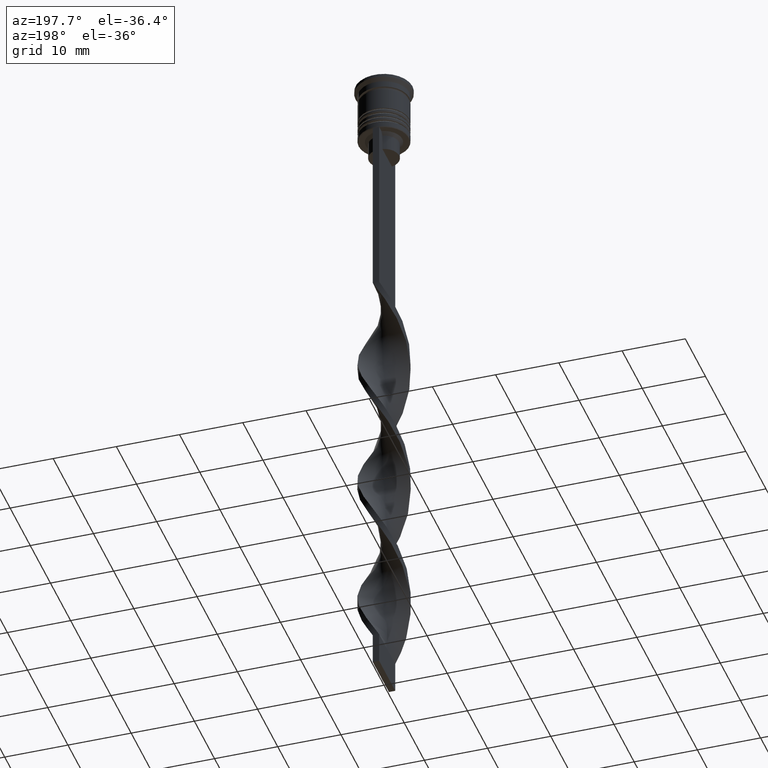
[diagram: clean part render]
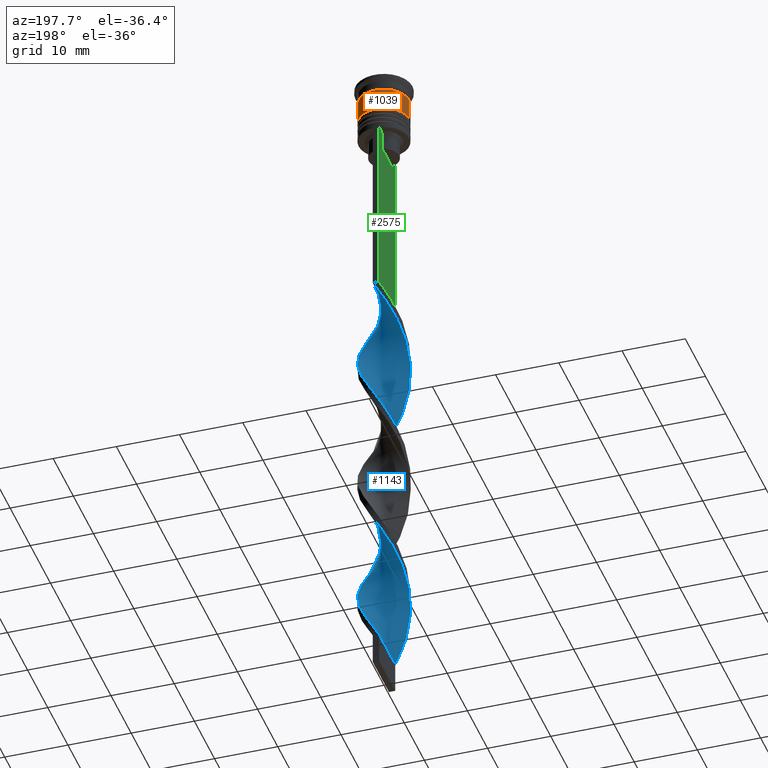
[diagram: same view with three faces highlighted in distinct colors, each labeled with its STEP entity id]
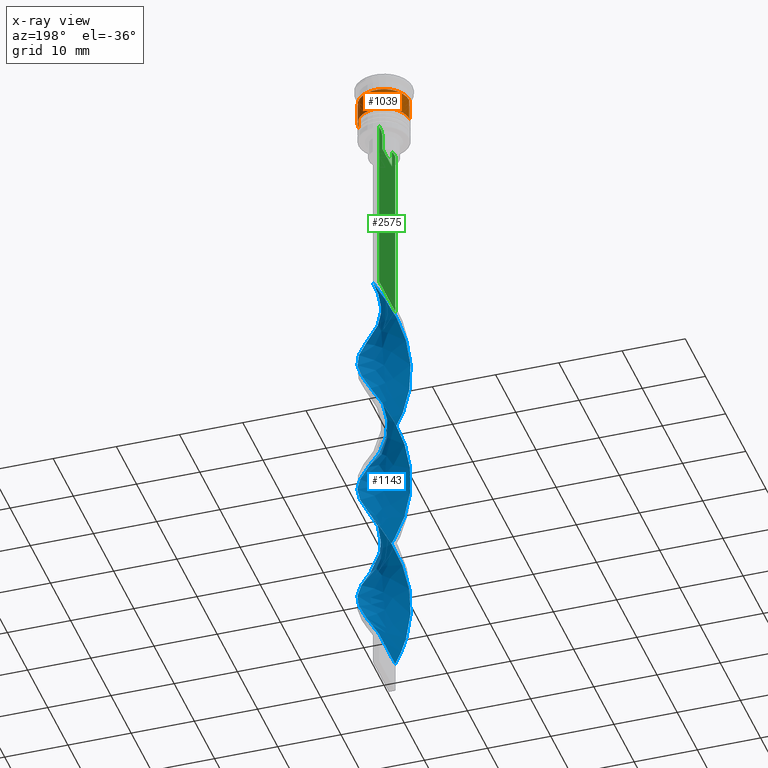
[diagram: x-ray of the same camera — body ghosted, the three highlighted faces saturated]
A machine part, auxiliary view with three faces highlighted in distinct colors.
The next image is the same camera in x-ray (body ghosted, the three faces saturated) — at least one of them is partly hidden behind the body in this view.
Their STEP definitions:

[orange] entity #1039 — the highlighted cylindrical surface (edge-blend (fillet) strip) has radius 4 mm, axis along (-0, -0, 1).
#120 = AXIS2_PLACEMENT_3D ( 'NONE', #3559, #494, #731 ) ;
#142 = CARTESIAN_POINT ( 'NONE',  ( -4.000000000000000888, 4.898587196589413815E-16, -6.000000000000000000 ) ) ;
#262 = ORIENTED_EDGE ( 'NONE', *, *, #599, .F. ) ;
#272 = AXIS2_PLACEMENT_3D ( 'NONE', #2569, #2866, #347 ) ;
#291 = CARTESIAN_POINT ( 'NONE',  ( -4.000000000000000000, 4.898587196589412829E-16, -2.500000000000000000 ) ) ;
#347 = DIRECTION ( 'NONE',  ( 1.000000000000000000, 0.000000000000000000, 0.000000000000000000 ) ) ;
#419 = ORIENTED_EDGE ( 'NONE', *, *, #2699, .T. ) ;
#435 = CARTESIAN_POINT ( 'NONE',  ( 4.000000000000000000, 0.000000000000000000, 0.000000000000000000 ) ) ;
#449 = AXIS2_PLACEMENT_3D ( 'NONE', #1781, #2631, #3441 ) ;
#450 = VERTEX_POINT ( 'NONE', #3061 ) ;
#494 = DIRECTION ( 'NONE',  ( -0.000000000000000000, -0.000000000000000000, 1.000000000000000000 ) ) ;
#599 = EDGE_CURVE ( 'NONE', #450, #2853, #2736, .T. ) ;
#731 = DIRECTION ( 'NONE',  ( 1.000000000000000000, 0.000000000000000000, 0.000000000000000000 ) ) ;
#1016 = EDGE_CURVE ( 'NONE', #450, #2601, #1817, .T. ) ;
#1039 = ADVANCED_FACE ( 'NONE', ( #3157 ), #3461, .T. ) ;
#1484 = CARTESIAN_POINT ( 'NONE',  ( 4.000000000000000000, 0.000000000000000000, -2.500000000000000000 ) ) ;
#1781 = CARTESIAN_POINT ( 'NONE',  ( 0.000000000000000000, 0.000000000000000000, -6.000000000000000000 ) ) ;
#1817 = CIRCLE ( 'NONE', #449, 4.000000000000000888 ) ;
#1858 = ORIENTED_EDGE ( 'NONE', *, *, #3310, .F. ) ;
#1903 = DIRECTION ( 'NONE',  ( -0.000000000000000000, -0.000000000000000000, 1.000000000000000000 ) ) ;
#2076 = ORIENTED_EDGE ( 'NONE', *, *, #1016, .T. ) ;
#2163 = DIRECTION ( 'NONE',  ( -0.000000000000000000, -0.000000000000000000, 1.000000000000000000 ) ) ;
#2343 = VERTEX_POINT ( 'NONE', #291 ) ;
#2569 = CARTESIAN_POINT ( 'NONE',  ( 0.000000000000000000, 0.000000000000000000, 0.000000000000000000 ) ) ;
#2601 = VERTEX_POINT ( 'NONE', #142 ) ;
#2631 = DIRECTION ( 'NONE',  ( -0.000000000000000000, -0.000000000000000000, 1.000000000000000000 ) ) ;
#2699 = EDGE_CURVE ( 'NONE', #2601, #2343, #3013, .T. ) ;
#2736 = LINE ( 'NONE', #435, #3335 ) ;
#2853 = VERTEX_POINT ( 'NONE', #1484 ) ;
#2866 = DIRECTION ( 'NONE',  ( -0.000000000000000000, -0.000000000000000000, 1.000000000000000000 ) ) ;
#3013 = LINE ( 'NONE', #3304, #3638 ) ;
#3061 = CARTESIAN_POINT ( 'NONE',  ( 4.000000000000000888, 0.000000000000000000, -6.000000000000000000 ) ) ;
#3157 = FACE_OUTER_BOUND ( 'NONE', #3364, .T. ) ;
#3294 = CIRCLE ( 'NONE', #120, 4.000000000000000000 ) ;
#3304 = CARTESIAN_POINT ( 'NONE',  ( -4.000000000000000000, 4.898587196589412829E-16, 0.000000000000000000 ) ) ;
#3310 = EDGE_CURVE ( 'NONE', #2853, #2343, #3294, .T. ) ;
#3335 = VECTOR ( 'NONE', #2163, 1000.000000000000000 ) ;
#3364 = EDGE_LOOP ( 'NONE', ( #2076, #419, #1858, #262 ) ) ;
#3441 = DIRECTION ( 'NONE',  ( 1.000000000000000000, 0.000000000000000000, 0.000000000000000000 ) ) ;
#3461 = CYLINDRICAL_SURFACE ( 'NONE', #272, 4.000000000000000000 ) ;
#3559 = CARTESIAN_POINT ( 'NONE',  ( 0.000000000000000000, 0.000000000000000000, -2.500000000000000000 ) ) ;
#3638 = VECTOR ( 'NONE', #1903, 1000.000000000000000 ) ;

[blue] entity #1143 — the highlighted face is a freeform B-spline surface patch.
#2 = CARTESIAN_POINT ( 'NONE',  ( 0.01431206711095556715, -4.060710991611130360, -81.65384615384616041 ) ) ;
#4 = CARTESIAN_POINT ( 'NONE',  ( -0.9856879328890412184, 3.939289008388869640, -61.34615384615383249 ) ) ;
#19 = CARTESIAN_POINT ( 'NONE',  ( -0.4717917484372087800, -4.003425101847986056, -80.80769230769230660 ) ) ;
#22 = CARTESIAN_POINT ( 'NONE',  ( 1.899779198837471705, -3.588929866731989549, -85.03846153846153300 ) ) ;
#39 = CARTESIAN_POINT ( 'NONE',  ( 2.682036731043690558, 3.048976478424999303, -98.57692307692310862 ) ) ;
#45 = CARTESIAN_POINT ( 'NONE',  ( -3.007903090209048891, -2.683750919871450868, -75.73076923076924061 ) ) ;
#75 = CARTESIAN_POINT ( 'NONE',  ( -2.682036731043690114, 3.048976478425000636, -88.42307692307691980 ) ) ;
#89 = CARTESIAN_POINT ( 'NONE',  ( 3.562762527220391107, -1.885927669512850846, -68.96153846153846700 ) ) ;
#93 = CARTESIAN_POINT ( 'NONE',  ( 4.032828965577023972, 0.4752569063773701696, -73.19230769230769340 ) ) ;
#118 = CARTESIAN_POINT ( 'NONE',  ( -3.026746007048731979, -2.662481663564005618, -99.42307692307691980 ) ) ;
#147 = CARTESIAN_POINT ( 'NONE',  ( 0.01431206711095789688, 4.060710991611130360, -39.34615384615384670 ) ) ;
#163 = CARTESIAN_POINT ( 'NONE',  ( -1.442733565863258516, -3.764109437560428262, -102.8076923076923208 ) ) ;
#182 = CARTESIAN_POINT ( 'NONE',  ( 1.416164675348469792, 3.774185688634723146, -57.11538461538461320 ) ) ;
#196 = CARTESIAN_POINT ( 'NONE',  ( 3.917367414262927561, 0.9509114268274349024, -74.03846153846153300 ) ) ;
#210 = CARTESIAN_POINT ( 'NONE',  ( -3.801905862948830261, -1.426565947277498081, -96.88461538461538680 ) ) ;
#221 = CARTESIAN_POINT ( 'NONE',  ( -3.917367414262927561, -0.9509114268274344584, -52.03846153846154010 ) ) ;
#230 = CARTESIAN_POINT ( 'NONE',  ( -2.301620701001679148, -3.309462516590954806, -101.1153846153846132 ) ) ;
#247 = CARTESIAN_POINT ( 'NONE',  ( 2.301620701001678704, -3.309462516590955250, -85.88461538461538680 ) ) ;
#260 = CARTESIAN_POINT ( 'NONE',  ( -2.682036731043692335, -3.048976478424997527, -76.57692307692306599 ) ) ;
#264 = CARTESIAN_POINT ( 'NONE',  ( -3.910567156264555422, -0.9785011580703162348, -72.34615384615383959 ) ) ;
#281 = CARTESIAN_POINT ( 'NONE',  ( -1.442733565863255851, 3.764109437560429594, -62.19230769230769340 ) ) ;
#284 = CARTESIAN_POINT ( 'NONE',  ( 3.333769449374405447, 2.318525361317902878, -52.88461538461538680 ) ) ;
#289 = CARTESIAN_POINT ( 'NONE',  ( -3.026746007048731979, -2.662481663564005618, -55.42307692307691980 ) ) ;
#295 = CARTESIAN_POINT ( 'NONE',  ( -3.791755605066378987, -1.453329977707795484, -73.19230769230770761 ) ) ;
#298 = CARTESIAN_POINT ( 'NONE',  ( 0.5000000000000000000, -4.000000000000000000, -82.50000000000000000 ) ) ;
#303 = CARTESIAN_POINT ( 'NONE',  ( -3.333769449374404559, 2.318525361317903322, -90.11538461538462741 ) ) ;
#312 = CARTESIAN_POINT ( 'NONE',  ( 3.562762527220391551, 1.885927669512849070, -96.03846153846154721 ) ) ;
#315 = CARTESIAN_POINT ( 'NONE',  ( -1.442733565863255851, 3.764109437560429594, -62.19230769230769340 ) ) ;
#321 = CARTESIAN_POINT ( 'NONE',  ( -3.350029810931577590, -2.294968160678091174, -98.57692307692310862 ) ) ;
#345 = CARTESIAN_POINT ( 'NONE',  ( 4.031103836519877248, -0.01420771602773772055, -72.34615384615383959 ) ) ;
#357 = CARTESIAN_POINT ( 'NONE',  ( 2.278235258877631342, 3.325604321804801256, -99.42307692307691980 ) ) ;
#360 = CARTESIAN_POINT ( 'NONE',  ( 2.278235258877629565, -3.325604321804802588, -65.57692307692308020 ) ) ;
#364 = CARTESIAN_POINT ( 'NONE',  ( -3.801905862948830261, -1.426565947277498081, -96.88461538461538680 ) ) ;
#371 = B_SPLINE_CURVE_WITH_KNOTS ( 'NONE', 3,
 ( #2108, #2599, #1207, #2341 ),
 .UNSPECIFIED., .F., .F.,
 ( 4, 4 ),
 ( 0.000000000000000000, 1.000000000000000000 ),
 .UNSPECIFIED. ) ;
#374 = CARTESIAN_POINT ( 'NONE',  ( 3.917367414262926673, -0.9509114268274357906, -90.96153846153845279 ) ) ;
#416 = CARTESIAN_POINT ( 'NONE',  ( -3.026746007048731979, -2.662481663564005618, -55.42307692307691980 ) ) ;
#431 = CARTESIAN_POINT ( 'NONE',  ( -0.9856879328890439940, -3.939289008388870084, -59.65384615384615330 ) ) ;
#448 = CARTESIAN_POINT ( 'NONE',  ( 3.910567156264554534, 0.9785011580703186773, -50.34615384615384670 ) ) ;
#468 = CARTESIAN_POINT ( 'NONE',  ( 2.703462203165886812, 3.029995166449921840, -78.26923076923075939 ) ) ;
#480 = CARTESIAN_POINT ( 'NONE',  ( -3.333769449374405003, 2.318525361317902878, -90.11538461538462741 ) ) ;
#483 = CARTESIAN_POINT ( 'NONE',  ( -0.4999999999999994449, 4.000000000000000000, -104.5000000000000142 ) ) ;
#491 = CARTESIAN_POINT ( 'NONE',  ( 3.801905862948830706, -1.426565947277498525, -46.11538461538462741 ) ) ;
#514 = CARTESIAN_POINT ( 'NONE',  ( 0.5000000000000000000, 4.000000000000000000, -82.50000000000000000 ) ) ;
#523 = CARTESIAN_POINT ( 'NONE',  ( -1.874433786711570349, 3.602232165184604096, -42.73076923076923350 ) ) ;
#533 = CARTESIAN_POINT ( 'NONE',  ( 3.791755605066377655, 1.453329977707796816, -51.19230769230768630 ) ) ;
#538 = CARTESIAN_POINT ( 'NONE',  ( 2.278235258877629565, -3.325604321804802588, -65.57692307692308020 ) ) ;
#546 = CARTESIAN_POINT ( 'NONE',  ( 3.026746007048731091, -2.662481663564006951, -87.57692307692308020 ) ) ;
#547 = VERTEX_POINT ( 'NONE', #483 ) ;
#549 = CARTESIAN_POINT ( 'NONE',  ( -0.9578955639853693471, -3.946139212084843972, -79.96153846153846700 ) ) ;
#555 =( BOUNDED_CURVE ( )  B_SPLINE_CURVE ( 2, ( #2032, #3076, #3387, #1972, #1092, #2876, #1376, #1692, #573, #1714, #2546, #818, #3642, #609, #2013, #533, #2505, #284, #2232, #3352, #892, #2855, #851, #1415, #3092, #3369, #1433, #4, #315, #3621, #1131, #1452, #2819, #1954, #2580, #2250, #1147, #1676, #1393, #3148, #264, #2801, #2527, #1992, #45, #1113, #3129, #1729, #832, #549, #3111, #2837, #298, #2562, #874, #22, #2285, #3407, #591, #1173, #2309, #3429, #374, #940, #2327, #3493, #2383, #959, #2961, #2078, #3524, #1514, #357, #3191, #1845, #2939, #3510, #1477, #980 ),
 .UNSPECIFIED., .F., .T. ) 
 B_SPLINE_CURVE_WITH_KNOTS ( ( 3, 2, 2, 2, 2, 2, 2, 2, 2, 2, 2, 2, 2, 2, 2, 2, 2, 2, 2, 2, 2, 2, 2, 2, 2, 2, 2, 2, 2, 2, 2, 2, 2, 2, 2, 2, 2, 2, 2, 3 ),
 ( 0.000000000000000000, 0.01923076923076923184, 0.03846153846153846367, 0.05769230769230768857, 0.07692307692307692735, 0.09615384615384615918, 0.1153846153846153771, 0.1346153846153846090, 0.1538461538461538547, 0.1730769230769230449, 0.1923076923076923184, 0.2115384615384615363, 0.2307692307692307543, 0.2500000000000000000, 0.2692307692307692180, 0.2884615384615384359, 0.3076923076923077094, 0.3269230769230769273, 0.3461538461538460898, 0.3653846153846153633, 0.3846153846153846367, 0.4038461538461539102, 0.4230769230769230727, 0.4423076923076922906, 0.4615384615384615086, 0.4807692307692307820, 0.5000000000000000000, 0.5192307692307692735, 0.5384615384615384359, 0.5576923076923077094, 0.5769230769230768718, 0.5961538461538461453, 0.6153846153846154188, 0.6346153846153845812, 0.6538461538461538547, 0.6730769230769230171, 0.6923076923076921796, 0.7115384615384615641, 0.7307692307692307265, 0.7500000000000000000 ),
 .UNSPECIFIED. ) 
 CURVE ( )  GEOMETRIC_REPRESENTATION_ITEM ( )  RATIONAL_B_SPLINE_CURVE ( ( 1.000000000000000000, 0.9927088740980539727, 1.000000000000000000, 0.9927088740980539727, 1.000000000000000000, 0.9927088740980539727, 1.000000000000000000, 0.9927088740980539727, 1.000000000000000000, 0.9927088740980539727, 1.000000000000000000, 0.9927088740980539727, 1.000000000000000000, 0.9927088740980539727, 1.000000000000000000, 0.9927088740980539727, 1.000000000000000000, 0.9927088740980539727, 1.000000000000000000, 0.9927088740980539727, 1.000000000000000000, 0.9927088740980539727, 1.000000000000000000, 0.9927088740980539727, 1.000000000000000000, 0.9927088740980539727, 1.000000000000000000, 0.9927088740980539727, 1.000000000000000000, 0.9927088740980539727, 1.000000000000000000, 0.9927088740980539727, 1.000000000000000000, 0.9927088740980539727, 1.000000000000000000, 0.9927088740980539727, 1.000000000000000000, 0.9927088740980539727, 1.000000000000000000, 0.9927088740980539727, 1.000000000000000000, 0.9927088740980539727, 1.000000000000000000, 0.9927088740980539727, 1.000000000000000000, 0.9927088740980539727, 1.000000000000000000, 0.9927088740980539727, 1.000000000000000000, 0.9927088740980539727, 1.000000000000000000, 0.9927088740980539727, 1.000000000000000000, 0.9927088740980539727, 1.000000000000000000, 0.9927088740980539727, 1.000000000000000000, 0.9927088740980539727, 1.000000000000000000, 0.9927088740980539727, 1.000000000000000000, 0.9927088740980539727, 1.000000000000000000, 0.9927088740980539727, 1.000000000000000000, 0.9927088740980539727, 1.000000000000000000, 0.9927088740980539727, 1.000000000000000000, 0.9927088740980539727, 1.000000000000000000, 0.9927088740980539727, 1.000000000000000000, 0.9927088740980539727, 1.000000000000000000, 0.9927088740980539727, 1.000000000000000000, 0.9927088740980539727, 1.000000000000000000 ) ) 
 REPRESENTATION_ITEM ( '' )  );
#558 = CARTESIAN_POINT ( 'NONE',  ( -3.910567156264554534, 0.9785011580703200096, -48.65384615384615330 ) ) ;
#570 = CARTESIAN_POINT ( 'NONE',  ( -3.575967836940203703, 1.860767053977795404, -67.26923076923077360 ) ) ;
#573 = CARTESIAN_POINT ( 'NONE',  ( 3.575967836940203703, -1.860767053977795404, -45.26923076923076650 ) ) ;
#587 = CARTESIAN_POINT ( 'NONE',  ( 0.9856879328890421066, -3.939289008388870084, -83.34615384615386802 ) ) ;
#591 = CARTESIAN_POINT ( 'NONE',  ( 3.026746007048731091, -2.662481663564006951, -87.57692307692308020 ) ) ;
#605 = CARTESIAN_POINT ( 'NONE',  ( 3.333769449374405447, 2.318525361317902433, -96.88461538461538680 ) ) ;
#609 = CARTESIAN_POINT ( 'NONE',  ( 4.029378707462731413, 0.5036723384328412045, -49.50000000000000000 ) ) ;
#617 = CARTESIAN_POINT ( 'NONE',  ( 3.026746007048732423, 2.662481663564005174, -77.42307692307693401 ) ) ;
#643 = CARTESIAN_POINT ( 'NONE',  ( -1.416164675348469126, 3.774185688634723590, -85.88461538461538680 ) ) ;
#661 = CARTESIAN_POINT ( 'NONE',  ( 4.031103836519877248, -0.01420771602773772055, -72.34615384615383959 ) ) ;
#665 = CARTESIAN_POINT ( 'NONE',  ( -4.029378707462731413, 0.5036723384328416486, -93.50000000000000000 ) ) ;
#677 = CARTESIAN_POINT ( 'NONE',  ( -0.9578955639853675708, 3.946139212084844416, -41.03846153846154010 ) ) ;
#710 = EDGE_LOOP ( 'NONE', ( #2075, #2208, #1865, #1643 ) ) ;
#729 = CARTESIAN_POINT ( 'NONE',  ( -2.278235258877630010, 3.325604321804802588, -87.57692307692308020 ) ) ;
#744 = CARTESIAN_POINT ( 'NONE',  ( -2.682036731043689670, 3.048976478425000636, -88.42307692307693401 ) ) ;
#760 = CARTESIAN_POINT ( 'NONE',  ( -2.703462203165886368, -3.029995166449921840, -100.2692307692307878 ) ) ;
#773 = CARTESIAN_POINT ( 'NONE',  ( 3.007903090209048003, 2.683750919871450868, -53.73076923076923350 ) ) ;
#782 = CARTESIAN_POINT ( 'NONE',  ( -3.801905862948830261, -1.426565947277498081, -52.88461538461538680 ) ) ;
#790 = CARTESIAN_POINT ( 'NONE',  ( 0.9856879328890444381, 3.939289008388870084, -81.65384615384616041 ) ) ;
#805 = CARTESIAN_POINT ( 'NONE',  ( -4.031103836519878136, 0.01420771602773549663, -50.34615384615384670 ) ) ;
#818 = CARTESIAN_POINT ( 'NONE',  ( 4.032828965577023972, -0.4752569063773721680, -47.80769230769230660 ) ) ;
#829 = CARTESIAN_POINT ( 'NONE',  ( -3.350029810931575813, 2.294968160678093394, -66.42307692307694822 ) ) ;
#832 = CARTESIAN_POINT ( 'NONE',  ( -1.416164675348472235, -3.774185688634722702, -79.11538461538461320 ) ) ;
#847 = CARTESIAN_POINT ( 'NONE',  ( -1.874433786711571459, -3.602232165184603652, -78.26923076923075939 ) ) ;
#851 = CARTESIAN_POINT ( 'NONE',  ( 1.416164675348469792, 3.774185688634723146, -57.11538461538461320 ) ) ;
#869 = CARTESIAN_POINT ( 'NONE',  ( -2.703462203165885924, 3.029995166449922728, -64.73076923076921219 ) ) ;
#874 = CARTESIAN_POINT ( 'NONE',  ( 1.442733565863256961, -3.764109437560429150, -84.19230769230769340 ) ) ;
#882 = CARTESIAN_POINT ( 'NONE',  ( 0.5000000000000000000, 4.000000000000000000, -38.50000000000000000 ) ) ;
#889 = CARTESIAN_POINT ( 'NONE',  ( 4.032828965577023972, -0.4752569063773721680, -91.80769230769230660 ) ) ;
#892 = CARTESIAN_POINT ( 'NONE',  ( 2.278235258877631342, 3.325604321804801256, -55.42307692307691980 ) ) ;
#901 = EDGE_CURVE ( 'NONE', #1787, #2049, #1862, .T. ) ;
#902 = CARTESIAN_POINT ( 'NONE',  ( -0.9578955639853675708, 3.946139212084843972, -85.03846153846153300 ) ) ;
#917 = CARTESIAN_POINT ( 'NONE',  ( -3.350029810931577590, -2.294968160678091618, -54.57692307692308731 ) ) ;
#940 = CARTESIAN_POINT ( 'NONE',  ( 4.032828965577023972, -0.4752569063773721680, -91.80769230769230660 ) ) ;
#942 = CARTESIAN_POINT ( 'NONE',  ( 3.910567156264554534, -0.9785011580703212308, -70.65384615384614619 ) ) ;
#947 = CARTESIAN_POINT ( 'NONE',  ( 0.01431206711095789862, 4.060710991611130360, -83.34615384615386802 ) ) ;
#959 = CARTESIAN_POINT ( 'NONE',  ( 3.791755605066377655, 1.453329977707796816, -95.19230769230769340 ) ) ;
#969 = CARTESIAN_POINT ( 'NONE',  ( -3.575967836940204148, -1.860767053977794516, -97.73076923076922640 ) ) ;
#980 = CARTESIAN_POINT ( 'NONE',  ( -0.4999999999999994449, 4.000000000000000000, -104.5000000000000142 ) ) ;
#1014 = CARTESIAN_POINT ( 'NONE',  ( -1.416164675348469126, 3.774185688634723590, -85.88461538461538680 ) ) ;
#1029 = CARTESIAN_POINT ( 'NONE',  ( -0.5000000000000005551, -4.000000000000000000, -104.5000000000000142 ) ) ;
#1044 = CARTESIAN_POINT ( 'NONE',  ( 3.801905862948831150, 1.426565947277496083, -74.88461538461538680 ) ) ;
#1061 = CARTESIAN_POINT ( 'NONE',  ( 1.442733565863260736, 3.764109437560427818, -80.80769230769230660 ) ) ;
#1070 = CARTESIAN_POINT ( 'NONE',  ( -2.278235258877630010, 3.325604321804802588, -43.57692307692307310 ) ) ;
#1075 = CARTESIAN_POINT ( 'NONE',  ( -0.4717917484372050052, 4.003425101847986944, -84.19230769230769340 ) ) ;
#1084 = CARTESIAN_POINT ( 'NONE',  ( -0.5000000000000005551, -4.000000000000000000, -60.50000000000000000 ) ) ;
#1092 = CARTESIAN_POINT ( 'NONE',  ( 2.301620701001678704, -3.309462516590955250, -41.88461538461537970 ) ) ;
#1103 = CARTESIAN_POINT ( 'NONE',  ( -3.007903090209047559, 2.683750919871451757, -45.26923076923076650 ) ) ;
#1113 = CARTESIAN_POINT ( 'NONE',  ( -2.682036731043692779, -3.048976478424997527, -76.57692307692306599 ) ) ;
#1120 = CARTESIAN_POINT ( 'NONE',  ( 3.007903090209047559, -2.683750919871451757, -67.26923076923077360 ) ) ;
#1127 = CARTESIAN_POINT ( 'NONE',  ( 4.031103836519878136, 0.01420771602773408804, -92.65384615384616041 ) ) ;
#1131 = CARTESIAN_POINT ( 'NONE',  ( -2.301620701001678704, 3.309462516590955250, -63.88461538461538680 ) ) ;
#1135 = CARTESIAN_POINT ( 'NONE',  ( 3.910567156264554534, -0.9785011580703212308, -70.65384615384614619 ) ) ;
#1143 = ADVANCED_FACE ( 'NONE', ( #3211 ), #2346, .T. ) ;
#1144 = CARTESIAN_POINT ( 'NONE',  ( -3.562762527220391551, -1.885927669512849514, -74.03846153846153300 ) ) ;
#1147 = CARTESIAN_POINT ( 'NONE',  ( -3.917367414262926673, 0.9509114268274362347, -68.96153846153846700 ) ) ;
#1156 = CARTESIAN_POINT ( 'NONE',  ( 3.575967836940204148, 1.860767053977794072, -75.73076923076924061 ) ) ;
#1168 = CARTESIAN_POINT ( 'NONE',  ( 0.4717917484372064485, 4.003425101847986056, -102.8076923076923208 ) ) ;
#1173 = CARTESIAN_POINT ( 'NONE',  ( 3.350029810931576701, -2.294968160678092506, -88.42307692307691980 ) ) ;
#1193 = CARTESIAN_POINT ( 'NONE',  ( 0.4717917484372037285, -4.003425101847986944, -62.19230769230769340 ) ) ;
#1199 = CARTESIAN_POINT ( 'NONE',  ( -0.5000000000000005551, -4.000000000000000000, -104.5000000000000142 ) ) ;
#1207 = CARTESIAN_POINT ( 'NONE',  ( -0.4999999999999997780, 1.333333333333333481, -104.5000000000000142 ) ) ;
#1218 = CARTESIAN_POINT ( 'NONE',  ( 0.5000000000000000000, 4.000000000000000000, -82.50000000000000000 ) ) ;
#1242 = CARTESIAN_POINT ( 'NONE',  ( -4.032828965577023084, -0.4752569063773717239, -95.19230769230769340 ) ) ;
#1255 = CARTESIAN_POINT ( 'NONE',  ( -3.333769449374405003, 2.318525361317902878, -46.11538461538462741 ) ) ;
#1269 = EDGE_CURVE ( 'NONE', #3436, #547, #371, .T. ) ;
#1271 = CARTESIAN_POINT ( 'NONE',  ( -3.562762527220391107, 1.885927669512850402, -46.96153846153845990 ) ) ;
#1290 = CARTESIAN_POINT ( 'NONE',  ( -3.026746007048731979, -2.662481663564005618, -99.42307692307691980 ) ) ;
#1306 = CARTESIAN_POINT ( 'NONE',  ( 0.5000000000000000000, -4.000000000000000000, -38.50000000000000000 ) ) ;
#1308 = CARTESIAN_POINT ( 'NONE',  ( 0.9578955639853687920, 3.946139212084844416, -57.96153846153846700 ) ) ;
#1321 = CARTESIAN_POINT ( 'NONE',  ( 1.899779198837473482, 3.588929866731988216, -79.96153846153846700 ) ) ;
#1336 = CARTESIAN_POINT ( 'NONE',  ( 4.031103836519878136, 0.01420771602773408804, -48.65384615384615330 ) ) ;
#1356 = CARTESIAN_POINT ( 'NONE',  ( -0.9856879328890439940, -3.939289008388870084, -103.6538461538461604 ) ) ;
#1365 = CARTESIAN_POINT ( 'NONE',  ( -1.442733565863258516, -3.764109437560428262, -58.80769230769231370 ) ) ;
#1372 = CARTESIAN_POINT ( 'NONE',  ( -1.416164675348472235, -3.774185688634722702, -79.11538461538461320 ) ) ;
#1376 = CARTESIAN_POINT ( 'NONE',  ( 3.026746007048731091, -2.662481663564006951, -43.57692307692307310 ) ) ;
#1389 = CARTESIAN_POINT ( 'NONE',  ( -3.801905862948829373, 1.426565947277500745, -68.11538461538462741 ) ) ;
#1393 = CARTESIAN_POINT ( 'NONE',  ( -4.031103836519878136, -0.01420771602773273322, -70.65384615384614619 ) ) ;
#1404 = CARTESIAN_POINT ( 'NONE',  ( 3.333769449374404115, -2.318525361317905098, -68.11538461538461320 ) ) ;
#1412 = CARTESIAN_POINT ( 'NONE',  ( -4.032828965577023084, 0.4752569063773718350, -69.80769230769230660 ) ) ;
#1415 = CARTESIAN_POINT ( 'NONE',  ( 0.9578955639853689030, 3.946139212084843972, -57.96153846153846700 ) ) ;
#1421 = CARTESIAN_POINT ( 'NONE',  ( -2.703462203165886368, -3.029995166449921840, -56.26923076923076650 ) ) ;
#1430 = CARTESIAN_POINT ( 'NONE',  ( 3.917367414262926673, -0.9509114268274357906, -90.96153846153845279 ) ) ;
#1433 = CARTESIAN_POINT ( 'NONE',  ( -0.4999999999999994449, 4.000000000000000000, -60.50000000000000000 ) ) ;
#1449 = CARTESIAN_POINT ( 'NONE',  ( 3.350029810931576701, -2.294968160678092506, -88.42307692307693401 ) ) ;
#1452 = CARTESIAN_POINT ( 'NONE',  ( -2.703462203165885924, 3.029995166449922728, -64.73076923076922640 ) ) ;
#1462 = CARTESIAN_POINT ( 'NONE',  ( -1.874433786711570349, 3.602232165184604096, -86.73076923076922640 ) ) ;
#1477 = CARTESIAN_POINT ( 'NONE',  ( -0.01431206711095605461, 4.060710991611130360, -103.6538461538461462 ) ) ;
#1483 = CARTESIAN_POINT ( 'NONE',  ( 1.442733565863260736, 3.764109437560427818, -80.80769230769230660 ) ) ;
#1497 = CARTESIAN_POINT ( 'NONE',  ( 2.682036731043688782, -3.048976478425001524, -66.42307692307694822 ) ) ;
#1503 = CARTESIAN_POINT ( 'NONE',  ( -2.301620701001679148, -3.309462516590954806, -101.1153846153846132 ) ) ;
#1514 = CARTESIAN_POINT ( 'NONE',  ( 2.682036731043691002, 3.048976478424999303, -98.57692307692310862 ) ) ;
#1530 = CARTESIAN_POINT ( 'NONE',  ( 0.5000000000000000000, -4.000000000000000000, -38.50000000000000000 ) ) ;
#1543 = CARTESIAN_POINT ( 'NONE',  ( -0.4717917484372050052, 4.003425101847986944, -40.19230769230769340 ) ) ;
#1560 = CARTESIAN_POINT ( 'NONE',  ( -1.899779198837473038, -3.588929866731988216, -57.96153846153846700 ) ) ;
#1572 = CARTESIAN_POINT ( 'NONE',  ( 1.416164675348468904, -3.774185688634723590, -63.88461538461538680 ) ) ;
#1589 = CARTESIAN_POINT ( 'NONE',  ( 3.350029810931576701, -2.294968160678092506, -44.42307692307691980 ) ) ;
#1605 = CARTESIAN_POINT ( 'NONE',  ( -1.899779198837473038, -3.588929866731988216, -101.9615384615384670 ) ) ;
#1618 = CARTESIAN_POINT ( 'NONE',  ( 2.703462203165886368, -3.029995166449922284, -42.73076923076923350 ) ) ;
#1634 = CARTESIAN_POINT ( 'NONE',  ( -3.910567156264554534, 0.9785011580703200096, -92.65384615384616041 ) ) ;
#1643 = ORIENTED_EDGE ( 'NONE', *, *, #2042, .F. ) ;
#1647 = CARTESIAN_POINT ( 'NONE',  ( -3.562762527220391107, 1.885927669512850402, -46.96153846153845990 ) ) ;
#1655 = CARTESIAN_POINT ( 'NONE',  ( -3.007903090209047559, 2.683750919871451757, -89.26923076923077360 ) ) ;
#1665 = CARTESIAN_POINT ( 'NONE',  ( 1.416164675348468904, -3.774185688634723590, -63.88461538461538680 ) ) ;
#1676 = CARTESIAN_POINT ( 'NONE',  ( -4.032828965577023084, 0.4752569063773718350, -69.80769230769230660 ) ) ;
#1688 = CARTESIAN_POINT ( 'NONE',  ( 2.703462203165886368, -3.029995166449922284, -86.73076923076922640 ) ) ;
#1692 = CARTESIAN_POINT ( 'NONE',  ( 3.350029810931576701, -2.294968160678092506, -44.42307692307692690 ) ) ;
#1702 = CARTESIAN_POINT ( 'NONE',  ( -0.9856879328890441050, -3.939289008388869640, -59.65384615384615330 ) ) ;
#1711 = CARTESIAN_POINT ( 'NONE',  ( 1.442733565863256961, -3.764109437560429150, -84.19230769230769340 ) ) ;
#1714 = CARTESIAN_POINT ( 'NONE',  ( 3.801905862948830706, -1.426565947277498525, -46.11538461538462030 ) ) ;
#1720 = CARTESIAN_POINT ( 'NONE',  ( -2.682036731043690114, 3.048976478425000636, -44.42307692307692690 ) ) ;
#1726 = CARTESIAN_POINT ( 'NONE',  ( 4.029378707462731413, 0.5036723384328412045, -93.49999999999998579 ) ) ;
#1729 = CARTESIAN_POINT ( 'NONE',  ( -1.874433786711571237, -3.602232165184603652, -78.26923076923077360 ) ) ;
#1754 = VECTOR ( 'NONE', #2096, 1000.000000000000000 ) ;
#1775 = CARTESIAN_POINT ( 'NONE',  ( -2.278235258877630010, 3.325604321804802588, -43.57692307692307310 ) ) ;
#1779 = CARTESIAN_POINT ( 'NONE',  ( -3.007903090209047559, 2.683750919871451757, -89.26923076923077360 ) ) ;
#1787 = VERTEX_POINT ( 'NONE', #1530 ) ;
#1793 = CARTESIAN_POINT ( 'NONE',  ( -1.874433786711570571, 3.602232165184604096, -42.73076923076923350 ) ) ;
#1797 = CARTESIAN_POINT ( 'NONE',  ( -0.9856879328890441050, -3.939289008388869640, -103.6538461538461462 ) ) ;
#1809 = CARTESIAN_POINT ( 'NONE',  ( -1.416164675348469126, 3.774185688634723590, -41.88461538461537970 ) ) ;
#1832 = CARTESIAN_POINT ( 'NONE',  ( -3.575967836940204148, -1.860767053977794516, -53.73076923076923350 ) ) ;
#1845 = CARTESIAN_POINT ( 'NONE',  ( 1.416164675348469792, 3.774185688634723146, -101.1153846153846132 ) ) ;
#1846 = CARTESIAN_POINT ( 'NONE',  ( -3.910567156264554534, 0.9785011580703200096, -48.65384615384615330 ) ) ;
#1862 = LINE ( 'NONE', #1306, #1754 ) ;
#1864 = CARTESIAN_POINT ( 'NONE',  ( 4.029378707462731413, 0.5036723384328412045, -49.50000000000000000 ) ) ;
#1865 = ORIENTED_EDGE ( 'NONE', *, *, #1269, .F. ) ;
#1881 = CARTESIAN_POINT ( 'NONE',  ( -4.032828965577023084, -0.4752569063773717239, -95.19230769230769340 ) ) ;
#1895 = CARTESIAN_POINT ( 'NONE',  ( 1.442733565863256961, -3.764109437560429150, -40.19230769230769340 ) ) ;
#1908 = CARTESIAN_POINT ( 'NONE',  ( 3.026746007048732423, 2.662481663564005174, -77.42307692307693401 ) ) ;
#1918 = CARTESIAN_POINT ( 'NONE',  ( -3.575967836940204148, -1.860767053977794516, -53.73076923076923350 ) ) ;
#1929 = CARTESIAN_POINT ( 'NONE',  ( -3.562762527220391107, 1.885927669512850402, -90.96153846153845279 ) ) ;
#1943 = CARTESIAN_POINT ( 'NONE',  ( -4.032828965577023084, -0.4752569063773717239, -51.19230769230768630 ) ) ;
#1954 = CARTESIAN_POINT ( 'NONE',  ( -3.350029810931575813, 2.294968160678093394, -66.42307692307693401 ) ) ;
#1961 = CARTESIAN_POINT ( 'NONE',  ( 0.5000000000000000000, 4.000000000000000000, -38.50000000000000000 ) ) ;
#1969 = CARTESIAN_POINT ( 'NONE',  ( -3.333769449374406335, -2.318525361317901101, -74.88461538461538680 ) ) ;
#1972 = CARTESIAN_POINT ( 'NONE',  ( 1.899779198837471705, -3.588929866731989549, -41.03846153846154010 ) ) ;
#1978 = CARTESIAN_POINT ( 'NONE',  ( -3.791755605066377655, 1.453329977707797260, -47.80769230769230660 ) ) ;
#1988 = CARTESIAN_POINT ( 'NONE',  ( -1.899779198837470373, 3.588929866731989549, -63.03846153846153300 ) ) ;
#1992 = CARTESIAN_POINT ( 'NONE',  ( -3.333769449374406335, -2.318525361317901101, -74.88461538461538680 ) ) ;
#1999 = CARTESIAN_POINT ( 'NONE',  ( -0.9578955639853675708, 3.946139212084843972, -41.03846153846154010 ) ) ;
#2010 = CARTESIAN_POINT ( 'NONE',  ( -4.029378707462731413, -0.5036723384328406494, -71.50000000000000000 ) ) ;
#2013 = CARTESIAN_POINT ( 'NONE',  ( 3.910567156264554534, 0.9785011580703186773, -50.34615384615384670 ) ) ;
#2030 = CARTESIAN_POINT ( 'NONE',  ( 3.801905862948830706, -1.426565947277498525, -90.11538461538462741 ) ) ;
#2032 = CARTESIAN_POINT ( 'NONE',  ( 0.5000000000000000000, -4.000000000000000000, -38.50000000000000000 ) ) ;
#2042 = EDGE_CURVE ( 'NONE', #2049, #3436, #2479, .T. ) ;
#2049 = VERTEX_POINT ( 'NONE', #882 ) ;
#2054 = CARTESIAN_POINT ( 'NONE',  ( -0.01431206711095876771, -4.060710991611130360, -61.34615384615383959 ) ) ;
#2060 = CARTESIAN_POINT ( 'NONE',  ( 3.801905862948831150, 1.426565947277496083, -74.88461538461538680 ) ) ;
#2075 = ORIENTED_EDGE ( 'NONE', *, *, #901, .F. ) ;
#2078 = CARTESIAN_POINT ( 'NONE',  ( 3.333769449374405447, 2.318525361317902878, -96.88461538461538680 ) ) ;
#2080 = CARTESIAN_POINT ( 'NONE',  ( 3.333769449374404559, -2.318525361317904654, -68.11538461538462741 ) ) ;
#2083 = CARTESIAN_POINT ( 'NONE',  ( -3.562762527220391107, 1.885927669512850402, -90.96153846153845279 ) ) ;
#2096 = DIRECTION ( 'NONE',  ( 0.000000000000000000, 1.000000000000000000, 0.000000000000000000 ) ) ;
#2102 = CARTESIAN_POINT ( 'NONE',  ( -2.703462203165886368, -3.029995166449921840, -100.2692307692307878 ) ) ;
#2108 = CARTESIAN_POINT ( 'NONE',  ( -0.5000000000000005551, -4.000000000000000000, -104.5000000000000142 ) ) ;
#2114 = CARTESIAN_POINT ( 'NONE',  ( -3.801905862948830261, -1.426565947277498081, -52.88461538461537970 ) ) ;
#2147 = CARTESIAN_POINT ( 'NONE',  ( 1.899779198837471705, -3.588929866731989105, -41.03846153846154010 ) ) ;
#2160 = CARTESIAN_POINT ( 'NONE',  ( -0.9578955639853675708, 3.946139212084844416, -85.03846153846153300 ) ) ;
#2179 = CARTESIAN_POINT ( 'NONE',  ( 0.01431206711095789688, 4.060710991611130360, -83.34615384615386802 ) ) ;
#2191 = CARTESIAN_POINT ( 'NONE',  ( 2.682036731043690558, 3.048976478424999303, -54.57692307692308731 ) ) ;
#2200 = CARTESIAN_POINT ( 'NONE',  ( -4.029378707462731413, 0.5036723384328416486, -49.50000000000000000 ) ) ;
#2207 = CARTESIAN_POINT ( 'NONE',  ( 3.575967836940204148, 1.860767053977794072, -75.73076923076924061 ) ) ;
#2208 = ORIENTED_EDGE ( 'NONE', *, *, #3359, .T. ) ;
#2217 = CARTESIAN_POINT ( 'NONE',  ( 0.9578955639853662385, -3.946139212084843972, -63.03846153846154010 ) ) ;
#2226 = CARTESIAN_POINT ( 'NONE',  ( 3.007903090209048003, 2.683750919871450868, -97.73076923076922640 ) ) ;
#2232 = CARTESIAN_POINT ( 'NONE',  ( 3.007903090209048003, 2.683750919871450868, -53.73076923076923350 ) ) ;
#2239 = CARTESIAN_POINT ( 'NONE',  ( -0.4717917484372050052, 4.003425101847986944, -40.19230769230769340 ) ) ;
#2248 = CARTESIAN_POINT ( 'NONE',  ( 2.278235258877631342, 3.325604321804801256, -99.42307692307691980 ) ) ;
#2250 = CARTESIAN_POINT ( 'NONE',  ( -3.801905862948829373, 1.426565947277500745, -68.11538461538461320 ) ) ;
#2256 = CARTESIAN_POINT ( 'NONE',  ( 0.01431206711095789862, 4.060710991611130360, -39.34615384615384670 ) ) ;
#2264 = CARTESIAN_POINT ( 'NONE',  ( 3.791755605066377655, 1.453329977707796816, -95.19230769230769340 ) ) ;
#2270 = CARTESIAN_POINT ( 'NONE',  ( 4.029378707462731413, -0.5036723384328422037, -71.50000000000001421 ) ) ;
#2280 = CARTESIAN_POINT ( 'NONE',  ( -0.4999999999999994449, 4.000000000000000000, -60.50000000000000000 ) ) ;
#2285 = CARTESIAN_POINT ( 'NONE',  ( 2.301620701001678704, -3.309462516590955250, -85.88461538461538680 ) ) ;
#2296 = CARTESIAN_POINT ( 'NONE',  ( -1.899779198837473038, -3.588929866731988660, -101.9615384615384670 ) ) ;
#2305 = CARTESIAN_POINT ( 'NONE',  ( -3.917367414262926673, 0.9509114268274362347, -68.96153846153846700 ) ) ;
#2309 = CARTESIAN_POINT ( 'NONE',  ( 3.575967836940203703, -1.860767053977795404, -89.26923076923077360 ) ) ;
#2327 = CARTESIAN_POINT ( 'NONE',  ( 4.031103836519878136, 0.01420771602773408804, -92.65384615384616041 ) ) ;
#2341 = CARTESIAN_POINT ( 'NONE',  ( -0.4999999999999994449, 4.000000000000000000, -104.5000000000000142 ) ) ;
#2346 =( BOUNDED_SURFACE ( )  B_SPLINE_SURFACE ( 1, 2, ( 
 ( #3173, #147, #1543, #677, #1809, #1793, #1775, #2665, #3226, #1255, #1271, #2642, #1846, #2384, #2347, #3511, #2700, #2114, #1832, #917, #416, #2974, #3246, #1560, #2684, #431, #2904, #2054, #1193, #2398, #1572, #3525, #360, #1497, #2625, #2080, #89, #3473, #942, #3193, #661, #3309, #196, #1044, #2207, #3019, #1908, #468, #3056, #1321, #1061, #790, #514, #2179, #1075, #2160, #1014, #3276, #729, #744, #1655, #480, #1929, #2733, #1634, #3297, #2449, #1881, #3006, #210, #3569, #2763, #1290, #760, #230, #1605, #163, #1356, #1029 ),
 ( #2419, #2988, #1895, #2147, #3543, #1618, #2485, #1589, #3031, #491, #3261, #2746, #1336, #1864, #448, #3328, #2466, #3606, #773, #2191, #3590, #2720, #182, #1308, #2434, #3557, #2280, #3126, #281, #1988, #2559, #869, #3400, #829, #570, #1389, #2305, #1412, #3106, #2010, #2522, #295, #1144, #1969, #3618, #260, #2544, #847, #1372, #2814, #19, #2, #2796, #587, #1711, #3089, #247, #1688, #546, #1449, #3639, #2030, #1430, #889, #1127, #1726, #2852, #2264, #312, #605, #2226, #39, #2248, #2576, #3384, #3144, #1168, #2834, #3426 ) ),
 .UNSPECIFIED., .F., .F., .F. ) 
 B_SPLINE_SURFACE_WITH_KNOTS ( ( 2, 2 ),
 ( 3, 2, 2, 2, 2, 2, 2, 2, 2, 2, 2, 2, 2, 2, 2, 2, 2, 2, 2, 2, 2, 2, 2, 2, 2, 2, 2, 2, 2, 2, 2, 2, 2, 2, 2, 2, 2, 2, 2, 3 ),
 ( 0.000000000000000000, 1.000000000000000000 ),
 ( 0.000000000000000000, 0.01923076923076923184, 0.03846153846153846367, 0.05769230769230769551, 0.07692307692307692735, 0.09615384615384615918, 0.1153846153846153910, 0.1346153846153846090, 0.1538461538461538547, 0.1730769230769230727, 0.1923076923076923184, 0.2115384615384615363, 0.2307692307692307820, 0.2500000000000000000, 0.2692307692307692180, 0.2884615384615384359, 0.3076923076923077094, 0.3269230769230769273, 0.3461538461538461453, 0.3653846153846153633, 0.3846153846153846367, 0.4038461538461538547, 0.4230769230769230727, 0.4423076923076922906, 0.4615384615384615641, 0.4807692307692307820, 0.5000000000000000000, 0.5192307692307692735, 0.5384615384615384359, 0.5576923076923077094, 0.5769230769230768718, 0.5961538461538461453, 0.6153846153846154188, 0.6346153846153845812, 0.6538461538461538547, 0.6730769230769231282, 0.6923076923076922906, 0.7115384615384615641, 0.7307692307692307265, 0.7500000000000000000 ),
 .UNSPECIFIED. ) 
 GEOMETRIC_REPRESENTATION_ITEM ( )  RATIONAL_B_SPLINE_SURFACE ( (
 ( 1.000000000000000000, 0.9927088740980539727, 1.000000000000000000, 0.9927088740980539727, 1.000000000000000000, 0.9927088740980539727, 1.000000000000000000, 0.9927088740980539727, 1.000000000000000000, 0.9927088740980539727, 1.000000000000000000, 0.9927088740980539727, 1.000000000000000000, 0.9927088740980539727, 1.000000000000000000, 0.9927088740980539727, 1.000000000000000000, 0.9927088740980539727, 1.000000000000000000, 0.9927088740980539727, 1.000000000000000000, 0.9927088740980539727, 1.000000000000000000, 0.9927088740980539727, 1.000000000000000000, 0.9927088740980539727, 1.000000000000000000, 0.9927088740980539727, 1.000000000000000000, 0.9927088740980539727, 1.000000000000000000, 0.9927088740980539727, 1.000000000000000000, 0.9927088740980539727, 1.000000000000000000, 0.9927088740980539727, 1.000000000000000000, 0.9927088740980539727, 1.000000000000000000, 0.9927088740980539727, 1.000000000000000000, 0.9927088740980539727, 1.000000000000000000, 0.9927088740980539727, 1.000000000000000000, 0.9927088740980539727, 1.000000000000000000, 0.9927088740980539727, 1.000000000000000000, 0.9927088740980539727, 1.000000000000000000, 0.9927088740980539727, 1.000000000000000000, 0.9927088740980539727, 1.000000000000000000, 0.9927088740980539727, 1.000000000000000000, 0.9927088740980539727, 1.000000000000000000, 0.9927088740980539727, 1.000000000000000000, 0.9927088740980539727, 1.000000000000000000, 0.9927088740980539727, 1.000000000000000000, 0.9927088740980539727, 1.000000000000000000, 0.9927088740980539727, 1.000000000000000000, 0.9927088740980539727, 1.000000000000000000, 0.9927088740980539727, 1.000000000000000000, 0.9927088740980539727, 1.000000000000000000, 0.9927088740980539727, 1.000000000000000000, 0.9927088740980539727, 1.000000000000000000),
 ( 1.000000000000000000, 0.9927088740980539727, 1.000000000000000000, 0.9927088740980539727, 1.000000000000000000, 0.9927088740980539727, 1.000000000000000000, 0.9927088740980539727, 1.000000000000000000, 0.9927088740980539727, 1.000000000000000000, 0.9927088740980539727, 1.000000000000000000, 0.9927088740980539727, 1.000000000000000000, 0.9927088740980539727, 1.000000000000000000, 0.9927088740980539727, 1.000000000000000000, 0.9927088740980539727, 1.000000000000000000, 0.9927088740980539727, 1.000000000000000000, 0.9927088740980539727, 1.000000000000000000, 0.9927088740980539727, 1.000000000000000000, 0.9927088740980539727, 1.000000000000000000, 0.9927088740980539727, 1.000000000000000000, 0.9927088740980539727, 1.000000000000000000, 0.9927088740980539727, 1.000000000000000000, 0.9927088740980539727, 1.000000000000000000, 0.9927088740980539727, 1.000000000000000000, 0.9927088740980539727, 1.000000000000000000, 0.9927088740980539727, 1.000000000000000000, 0.9927088740980539727, 1.000000000000000000, 0.9927088740980539727, 1.000000000000000000, 0.9927088740980539727, 1.000000000000000000, 0.9927088740980539727, 1.000000000000000000, 0.9927088740980539727, 1.000000000000000000, 0.9927088740980539727, 1.000000000000000000, 0.9927088740980539727, 1.000000000000000000, 0.9927088740980539727, 1.000000000000000000, 0.9927088740980539727, 1.000000000000000000, 0.9927088740980539727, 1.000000000000000000, 0.9927088740980539727, 1.000000000000000000, 0.9927088740980539727, 1.000000000000000000, 0.9927088740980539727, 1.000000000000000000, 0.9927088740980539727, 1.000000000000000000, 0.9927088740980539727, 1.000000000000000000, 0.9927088740980539727, 1.000000000000000000, 0.9927088740980539727, 1.000000000000000000, 0.9927088740980539727, 1.000000000000000000) ) ) 
 REPRESENTATION_ITEM ( '' )  SURFACE ( )  );
#2347 = CARTESIAN_POINT ( 'NONE',  ( -4.031103836519878136, 0.01420771602773549663, -50.34615384615384670 ) ) ;
#2352 = CARTESIAN_POINT ( 'NONE',  ( 2.301620701001681368, 3.309462516590953474, -79.11538461538461320 ) ) ;
#2373 = CARTESIAN_POINT ( 'NONE',  ( -2.278235258877630010, 3.325604321804802588, -87.57692307692308020 ) ) ;
#2383 = CARTESIAN_POINT ( 'NONE',  ( 3.910567156264554534, 0.9785011580703186773, -94.34615384615385381 ) ) ;
#2384 = CARTESIAN_POINT ( 'NONE',  ( -4.029378707462731413, 0.5036723384328416486, -49.50000000000000000 ) ) ;
#2398 = CARTESIAN_POINT ( 'NONE',  ( 0.9578955639853662385, -3.946139212084844416, -63.03846153846153300 ) ) ;
#2419 = CARTESIAN_POINT ( 'NONE',  ( 0.5000000000000000000, -4.000000000000000000, -38.50000000000000000 ) ) ;
#2434 = CARTESIAN_POINT ( 'NONE',  ( 0.4717917484372064485, 4.003425101847986056, -58.80769230769231370 ) ) ;
#2449 = CARTESIAN_POINT ( 'NONE',  ( -4.031103836519878136, 0.01420771602773549663, -94.34615384615385381 ) ) ;
#2466 = CARTESIAN_POINT ( 'NONE',  ( 3.562762527220391551, 1.885927669512849070, -52.03846153846154010 ) ) ;
#2479 =( BOUNDED_CURVE ( )  B_SPLINE_CURVE ( 2, ( #1961, #2256, #2239, #1999, #3042, #523, #1070, #1720, #1103, #2550, #1647, #1978, #558, #2200, #805, #1943, #221, #782, #1918, #3358, #289, #1421, #3097, #2772, #1365, #1702, #1084, #2789, #3082, #2217, #1665, #2512, #538, #2806, #1120, #1404, #3375, #2828, #1135, #2270, #345, #93, #2628, #2060, #1156, #3416, #617, #2612, #2352, #3199, #1483, #3179, #1218, #947, #3480, #902, #643, #1462, #2373, #75, #1779, #303, #2083, #3500, #2650, #665, #2908, #1242, #3458, #364, #969, #321, #118, #2102, #1503, #2296, #3215, #1797, #1199 ),
 .UNSPECIFIED., .F., .T. ) 
 B_SPLINE_CURVE_WITH_KNOTS ( ( 3, 2, 2, 2, 2, 2, 2, 2, 2, 2, 2, 2, 2, 2, 2, 2, 2, 2, 2, 2, 2, 2, 2, 2, 2, 2, 2, 2, 2, 2, 2, 2, 2, 2, 2, 2, 2, 2, 2, 3 ),
 ( 0.000000000000000000, 0.01923076923076923184, 0.03846153846153846367, 0.05769230769230768857, 0.07692307692307692735, 0.09615384615384615918, 0.1153846153846153771, 0.1346153846153846090, 0.1538461538461538547, 0.1730769230769230449, 0.1923076923076923184, 0.2115384615384615363, 0.2307692307692307543, 0.2500000000000000000, 0.2692307692307692180, 0.2884615384615384359, 0.3076923076923077094, 0.3269230769230769273, 0.3461538461538460898, 0.3653846153846153633, 0.3846153846153846367, 0.4038461538461539102, 0.4230769230769230727, 0.4423076923076922906, 0.4615384615384615086, 0.4807692307692307820, 0.5000000000000000000, 0.5192307692307692735, 0.5384615384615384359, 0.5576923076923077094, 0.5769230769230768718, 0.5961538461538461453, 0.6153846153846154188, 0.6346153846153845812, 0.6538461538461538547, 0.6730769230769230171, 0.6923076923076921796, 0.7115384615384615641, 0.7307692307692307265, 0.7500000000000000000 ),
 .UNSPECIFIED. ) 
 CURVE ( )  GEOMETRIC_REPRESENTATION_ITEM ( )  RATIONAL_B_SPLINE_CURVE ( ( 1.000000000000000000, 0.9927088740980539727, 1.000000000000000000, 0.9927088740980539727, 1.000000000000000000, 0.9927088740980539727, 1.000000000000000000, 0.9927088740980539727, 1.000000000000000000, 0.9927088740980539727, 1.000000000000000000, 0.9927088740980539727, 1.000000000000000000, 0.9927088740980539727, 1.000000000000000000, 0.9927088740980539727, 1.000000000000000000, 0.9927088740980539727, 1.000000000000000000, 0.9927088740980539727, 1.000000000000000000, 0.9927088740980539727, 1.000000000000000000, 0.9927088740980539727, 1.000000000000000000, 0.9927088740980539727, 1.000000000000000000, 0.9927088740980539727, 1.000000000000000000, 0.9927088740980539727, 1.000000000000000000, 0.9927088740980539727, 1.000000000000000000, 0.9927088740980539727, 1.000000000000000000, 0.9927088740980539727, 1.000000000000000000, 0.9927088740980539727, 1.000000000000000000, 0.9927088740980539727, 1.000000000000000000, 0.9927088740980539727, 1.000000000000000000, 0.9927088740980539727, 1.000000000000000000, 0.9927088740980539727, 1.000000000000000000, 0.9927088740980539727, 1.000000000000000000, 0.9927088740980539727, 1.000000000000000000, 0.9927088740980539727, 1.000000000000000000, 0.9927088740980539727, 1.000000000000000000, 0.9927088740980539727, 1.000000000000000000, 0.9927088740980539727, 1.000000000000000000, 0.9927088740980539727, 1.000000000000000000, 0.9927088740980539727, 1.000000000000000000, 0.9927088740980539727, 1.000000000000000000, 0.9927088740980539727, 1.000000000000000000, 0.9927088740980539727, 1.000000000000000000, 0.9927088740980539727, 1.000000000000000000, 0.9927088740980539727, 1.000000000000000000, 0.9927088740980539727, 1.000000000000000000, 0.9927088740980539727, 1.000000000000000000, 0.9927088740980539727, 1.000000000000000000 ) ) 
 REPRESENTATION_ITEM ( '' )  );
#2485 = CARTESIAN_POINT ( 'NONE',  ( 3.026746007048731091, -2.662481663564006951, -43.57692307692307310 ) ) ;
#2505 = CARTESIAN_POINT ( 'NONE',  ( 3.562762527220391551, 1.885927669512849070, -52.03846153846154010 ) ) ;
#2512 = CARTESIAN_POINT ( 'NONE',  ( 1.874433786711570127, -3.602232165184604540, -64.73076923076922640 ) ) ;
#2522 = CARTESIAN_POINT ( 'NONE',  ( -3.910567156264555422, -0.9785011580703162348, -72.34615384615383959 ) ) ;
#2527 = CARTESIAN_POINT ( 'NONE',  ( -3.562762527220391551, -1.885927669512849514, -74.03846153846153300 ) ) ;
#2544 = CARTESIAN_POINT ( 'NONE',  ( -2.278235258877631786, -3.325604321804800811, -77.42307692307693401 ) ) ;
#2546 = CARTESIAN_POINT ( 'NONE',  ( 3.917367414262926673, -0.9509114268274357906, -46.96153846153845990 ) ) ;
#2550 = CARTESIAN_POINT ( 'NONE',  ( -3.333769449374404559, 2.318525361317903322, -46.11538461538462030 ) ) ;
#2559 = CARTESIAN_POINT ( 'NONE',  ( -2.301620701001678704, 3.309462516590955250, -63.88461538461538680 ) ) ;
#2562 = CARTESIAN_POINT ( 'NONE',  ( 0.9856879328890421066, -3.939289008388869640, -83.34615384615386802 ) ) ;
#2576 = CARTESIAN_POINT ( 'NONE',  ( 1.874433786711571015, 3.602232165184603652, -100.2692307692307878 ) ) ;
#2580 = CARTESIAN_POINT ( 'NONE',  ( -3.575967836940203703, 1.860767053977795404, -67.26923076923077360 ) ) ;
#2599 = CARTESIAN_POINT ( 'NONE',  ( -0.5000000000000002220, -1.333333333333333481, -104.5000000000000142 ) ) ;
#2612 = CARTESIAN_POINT ( 'NONE',  ( 2.703462203165886812, 3.029995166449921840, -78.26923076923077360 ) ) ;
#2625 = CARTESIAN_POINT ( 'NONE',  ( 3.007903090209047559, -2.683750919871451757, -67.26923076923077360 ) ) ;
#2628 = CARTESIAN_POINT ( 'NONE',  ( 3.917367414262927561, 0.9509114268274349024, -74.03846153846153300 ) ) ;
#2642 = CARTESIAN_POINT ( 'NONE',  ( -3.791755605066377655, 1.453329977707797260, -47.80769230769230660 ) ) ;
#2650 = CARTESIAN_POINT ( 'NONE',  ( -3.910567156264554534, 0.9785011580703200096, -92.65384615384616041 ) ) ;
#2665 = CARTESIAN_POINT ( 'NONE',  ( -2.682036731043689670, 3.048976478425000636, -44.42307692307691980 ) ) ;
#2684 = CARTESIAN_POINT ( 'NONE',  ( -1.442733565863258516, -3.764109437560428262, -58.80769230769231370 ) ) ;
#2700 = CARTESIAN_POINT ( 'NONE',  ( -3.917367414262927561, -0.9509114268274344584, -52.03846153846154010 ) ) ;
#2720 = CARTESIAN_POINT ( 'NONE',  ( 1.874433786711571015, 3.602232165184603652, -56.26923076923076650 ) ) ;
#2733 = CARTESIAN_POINT ( 'NONE',  ( -3.791755605066377655, 1.453329977707797260, -91.80769230769230660 ) ) ;
#2746 = CARTESIAN_POINT ( 'NONE',  ( 4.032828965577023972, -0.4752569063773721680, -47.80769230769230660 ) ) ;
#2763 = CARTESIAN_POINT ( 'NONE',  ( -3.350029810931577590, -2.294968160678091618, -98.57692307692310862 ) ) ;
#2772 = CARTESIAN_POINT ( 'NONE',  ( -1.899779198837473038, -3.588929866731988660, -57.96153846153846700 ) ) ;
#2789 = CARTESIAN_POINT ( 'NONE',  ( -0.01431206711095876771, -4.060710991611130360, -61.34615384615383249 ) ) ;
#2796 = CARTESIAN_POINT ( 'NONE',  ( 0.5000000000000000000, -4.000000000000000000, -82.50000000000000000 ) ) ;
#2801 = CARTESIAN_POINT ( 'NONE',  ( -3.791755605066378987, -1.453329977707795484, -73.19230769230769340 ) ) ;
#2806 = CARTESIAN_POINT ( 'NONE',  ( 2.682036731043689226, -3.048976478425001524, -66.42307692307693401 ) ) ;
#2814 = CARTESIAN_POINT ( 'NONE',  ( -0.9578955639853692361, -3.946139212084844416, -79.96153846153846700 ) ) ;
#2819 = CARTESIAN_POINT ( 'NONE',  ( -3.026746007048730647, 2.662481663564007839, -65.57692307692308020 ) ) ;
#2828 = CARTESIAN_POINT ( 'NONE',  ( 3.791755605066377655, -1.453329977707796816, -69.80769230769230660 ) ) ;
#2834 = CARTESIAN_POINT ( 'NONE',  ( -0.01431206711095605461, 4.060710991611130360, -103.6538461538461604 ) ) ;
#2837 = CARTESIAN_POINT ( 'NONE',  ( 0.01431206711095556715, -4.060710991611130360, -81.65384615384616041 ) ) ;
#2852 = CARTESIAN_POINT ( 'NONE',  ( 3.910567156264554534, 0.9785011580703186773, -94.34615384615385381 ) ) ;
#2855 = CARTESIAN_POINT ( 'NONE',  ( 1.874433786711570793, 3.602232165184603652, -56.26923076923076650 ) ) ;
#2876 = CARTESIAN_POINT ( 'NONE',  ( 2.703462203165886368, -3.029995166449922284, -42.73076923076923350 ) ) ;
#2904 = CARTESIAN_POINT ( 'NONE',  ( -0.5000000000000005551, -4.000000000000000000, -60.50000000000000000 ) ) ;
#2908 = CARTESIAN_POINT ( 'NONE',  ( -4.031103836519878136, 0.01420771602773549663, -94.34615384615385381 ) ) ;
#2939 = CARTESIAN_POINT ( 'NONE',  ( 0.9578955639853689030, 3.946139212084843972, -101.9615384615384670 ) ) ;
#2961 = CARTESIAN_POINT ( 'NONE',  ( 3.562762527220391551, 1.885927669512849070, -96.03846153846154721 ) ) ;
#2974 = CARTESIAN_POINT ( 'NONE',  ( -2.703462203165886368, -3.029995166449921840, -56.26923076923076650 ) ) ;
#2988 = CARTESIAN_POINT ( 'NONE',  ( 0.9856879328890421066, -3.939289008388870084, -39.34615384615384670 ) ) ;
#3006 = CARTESIAN_POINT ( 'NONE',  ( -3.917367414262927561, -0.9509114268274344584, -96.03846153846154721 ) ) ;
#3019 = CARTESIAN_POINT ( 'NONE',  ( 3.350029810931578478, 2.294968160678088953, -76.57692307692306599 ) ) ;
#3031 = CARTESIAN_POINT ( 'NONE',  ( 3.575967836940203703, -1.860767053977795404, -45.26923076923076650 ) ) ;
#3042 = CARTESIAN_POINT ( 'NONE',  ( -1.416164675348469126, 3.774185688634723590, -41.88461538461537970 ) ) ;
#3056 = CARTESIAN_POINT ( 'NONE',  ( 2.301620701001681368, 3.309462516590953474, -79.11538461538461320 ) ) ;
#3076 = CARTESIAN_POINT ( 'NONE',  ( 0.9856879328890421066, -3.939289008388869640, -39.34615384615384670 ) ) ;
#3082 = CARTESIAN_POINT ( 'NONE',  ( 0.4717917484372037285, -4.003425101847986944, -62.19230769230769340 ) ) ;
#3089 = CARTESIAN_POINT ( 'NONE',  ( 1.899779198837471705, -3.588929866731989105, -85.03846153846153300 ) ) ;
#3092 = CARTESIAN_POINT ( 'NONE',  ( 0.4717917484372064485, 4.003425101847986056, -58.80769230769231370 ) ) ;
#3097 = CARTESIAN_POINT ( 'NONE',  ( -2.301620701001679148, -3.309462516590954806, -57.11538461538461320 ) ) ;
#3106 = CARTESIAN_POINT ( 'NONE',  ( -4.031103836519878136, -0.01420771602773273322, -70.65384615384614619 ) ) ;
#3111 = CARTESIAN_POINT ( 'NONE',  ( -0.4717917484372087800, -4.003425101847986056, -80.80769230769230660 ) ) ;
#3126 = CARTESIAN_POINT ( 'NONE',  ( -0.9856879328890411074, 3.939289008388870084, -61.34615384615383959 ) ) ;
#3129 = CARTESIAN_POINT ( 'NONE',  ( -2.278235258877631786, -3.325604321804800811, -77.42307692307693401 ) ) ;
#3144 = CARTESIAN_POINT ( 'NONE',  ( 0.9578955639853687920, 3.946139212084844416, -101.9615384615384670 ) ) ;
#3148 = CARTESIAN_POINT ( 'NONE',  ( -4.029378707462731413, -0.5036723384328407604, -71.50000000000001421 ) ) ;
#3173 = CARTESIAN_POINT ( 'NONE',  ( 0.5000000000000000000, 4.000000000000000000, -38.50000000000000000 ) ) ;
#3179 = CARTESIAN_POINT ( 'NONE',  ( 0.9856879328890445491, 3.939289008388869640, -81.65384615384616041 ) ) ;
#3191 = CARTESIAN_POINT ( 'NONE',  ( 1.874433786711570793, 3.602232165184603652, -100.2692307692307878 ) ) ;
#3193 = CARTESIAN_POINT ( 'NONE',  ( 4.029378707462731413, -0.5036723384328422037, -71.50000000000000000 ) ) ;
#3199 = CARTESIAN_POINT ( 'NONE',  ( 1.899779198837473482, 3.588929866731988660, -79.96153846153846700 ) ) ;
#3211 = FACE_OUTER_BOUND ( 'NONE', #710, .T. ) ;
#3215 = CARTESIAN_POINT ( 'NONE',  ( -1.442733565863258516, -3.764109437560428262, -102.8076923076923208 ) ) ;
#3226 = CARTESIAN_POINT ( 'NONE',  ( -3.007903090209047559, 2.683750919871451757, -45.26923076923076650 ) ) ;
#3246 = CARTESIAN_POINT ( 'NONE',  ( -2.301620701001679148, -3.309462516590954806, -57.11538461538461320 ) ) ;
#3261 = CARTESIAN_POINT ( 'NONE',  ( 3.917367414262926673, -0.9509114268274357906, -46.96153846153845990 ) ) ;
#3276 = CARTESIAN_POINT ( 'NONE',  ( -1.874433786711570571, 3.602232165184604096, -86.73076923076922640 ) ) ;
#3297 = CARTESIAN_POINT ( 'NONE',  ( -4.029378707462731413, 0.5036723384328416486, -93.49999999999998579 ) ) ;
#3309 = CARTESIAN_POINT ( 'NONE',  ( 4.032828965577023972, 0.4752569063773701696, -73.19230769230770761 ) ) ;
#3328 = CARTESIAN_POINT ( 'NONE',  ( 3.791755605066377655, 1.453329977707796816, -51.19230769230768630 ) ) ;
#3352 = CARTESIAN_POINT ( 'NONE',  ( 2.682036731043691002, 3.048976478424999303, -54.57692307692308731 ) ) ;
#3358 = CARTESIAN_POINT ( 'NONE',  ( -3.350029810931577590, -2.294968160678091174, -54.57692307692308731 ) ) ;
#3359 = EDGE_CURVE ( 'NONE', #1787, #547, #555, .T. ) ;
#3369 = CARTESIAN_POINT ( 'NONE',  ( -0.01431206711095605461, 4.060710991611130360, -59.65384615384615330 ) ) ;
#3375 = CARTESIAN_POINT ( 'NONE',  ( 3.562762527220391107, -1.885927669512850846, -68.96153846153846700 ) ) ;
#3384 = CARTESIAN_POINT ( 'NONE',  ( 1.416164675348469792, 3.774185688634723146, -101.1153846153846132 ) ) ;
#3387 = CARTESIAN_POINT ( 'NONE',  ( 1.442733565863256961, -3.764109437560429150, -40.19230769230769340 ) ) ;
#3400 = CARTESIAN_POINT ( 'NONE',  ( -3.026746007048730647, 2.662481663564007839, -65.57692307692308020 ) ) ;
#3407 = CARTESIAN_POINT ( 'NONE',  ( 2.703462203165886368, -3.029995166449922284, -86.73076923076922640 ) ) ;
#3416 = CARTESIAN_POINT ( 'NONE',  ( 3.350029810931578478, 2.294968160678088509, -76.57692307692306599 ) ) ;
#3426 = CARTESIAN_POINT ( 'NONE',  ( -0.4999999999999994449, 4.000000000000000000, -104.5000000000000142 ) ) ;
#3429 = CARTESIAN_POINT ( 'NONE',  ( 3.801905862948830706, -1.426565947277498525, -90.11538461538462741 ) ) ;
#3436 = VERTEX_POINT ( 'NONE', #3470 ) ;
#3458 = CARTESIAN_POINT ( 'NONE',  ( -3.917367414262927561, -0.9509114268274344584, -96.03846153846154721 ) ) ;
#3470 = CARTESIAN_POINT ( 'NONE',  ( -0.5000000000000005551, -4.000000000000000000, -104.5000000000000142 ) ) ;
#3473 = CARTESIAN_POINT ( 'NONE',  ( 3.791755605066377655, -1.453329977707796816, -69.80769230769230660 ) ) ;
#3480 = CARTESIAN_POINT ( 'NONE',  ( -0.4717917484372050052, 4.003425101847986944, -84.19230769230769340 ) ) ;
#3493 = CARTESIAN_POINT ( 'NONE',  ( 4.029378707462731413, 0.5036723384328412045, -93.50000000000000000 ) ) ;
#3500 = CARTESIAN_POINT ( 'NONE',  ( -3.791755605066377655, 1.453329977707797260, -91.80769230769230660 ) ) ;
#3510 = CARTESIAN_POINT ( 'NONE',  ( 0.4717917484372064485, 4.003425101847986056, -102.8076923076923208 ) ) ;
#3511 = CARTESIAN_POINT ( 'NONE',  ( -4.032828965577023084, -0.4752569063773717239, -51.19230769230768630 ) ) ;
#3524 = CARTESIAN_POINT ( 'NONE',  ( 3.007903090209048003, 2.683750919871450868, -97.73076923076922640 ) ) ;
#3525 = CARTESIAN_POINT ( 'NONE',  ( 1.874433786711570127, -3.602232165184604540, -64.73076923076921219 ) ) ;
#3543 = CARTESIAN_POINT ( 'NONE',  ( 2.301620701001678704, -3.309462516590955250, -41.88461538461537970 ) ) ;
#3557 = CARTESIAN_POINT ( 'NONE',  ( -0.01431206711095605461, 4.060710991611130360, -59.65384615384615330 ) ) ;
#3569 = CARTESIAN_POINT ( 'NONE',  ( -3.575967836940204148, -1.860767053977794516, -97.73076923076922640 ) ) ;
#3590 = CARTESIAN_POINT ( 'NONE',  ( 2.278235258877631342, 3.325604321804801256, -55.42307692307691980 ) ) ;
#3606 = CARTESIAN_POINT ( 'NONE',  ( 3.333769449374405447, 2.318525361317902433, -52.88461538461537970 ) ) ;
#3618 = CARTESIAN_POINT ( 'NONE',  ( -3.007903090209048891, -2.683750919871450868, -75.73076923076924061 ) ) ;
#3621 = CARTESIAN_POINT ( 'NONE',  ( -1.899779198837470373, 3.588929866731989993, -63.03846153846154010 ) ) ;
#3639 = CARTESIAN_POINT ( 'NONE',  ( 3.575967836940203703, -1.860767053977795404, -89.26923076923077360 ) ) ;
#3642 = CARTESIAN_POINT ( 'NONE',  ( 4.031103836519878136, 0.01420771602773408804, -48.65384615384615330 ) ) ;

[green] entity #2575 — the highlighted planar face has unit normal (-1, 0, 0).
#79 = ORIENTED_EDGE ( 'NONE', *, *, #143, .F. ) ;
#84 = ORIENTED_EDGE ( 'NONE', *, *, #1523, .T. ) ;
#140 = ORIENTED_EDGE ( 'NONE', *, *, #2721, .F. ) ;
#143 = EDGE_CURVE ( 'NONE', #150, #1897, #641, .T. ) ;
#150 = VERTEX_POINT ( 'NONE', #2611 ) ;
#154 = ORIENTED_EDGE ( 'NONE', *, *, #2604, .F. ) ;
#155 = CARTESIAN_POINT ( 'NONE',  ( -0.5000000000000000000, -4.000000000000000000, -38.50000000000000000 ) ) ;
#174 = CARTESIAN_POINT ( 'NONE',  ( -0.5000000000000000000, 2.856571371417138572, -9.500000000000000000 ) ) ;
#177 = FACE_OUTER_BOUND ( 'NONE', #1246, .T. ) ;
#186 = CARTESIAN_POINT ( 'NONE',  ( -0.5000000000000000000, -2.517408374291112416, -9.833662228483172285 ) ) ;
#200 = EDGE_CURVE ( 'NONE', #715, #2215, #3203, .T. ) ;
#214 = CARTESIAN_POINT ( 'NONE',  ( -0.5000000000000000000, -4.000000000000000000, -38.50000000000000000 ) ) ;
#223 = VECTOR ( 'NONE', #3564, 1000.000000000000000 ) ;
#235 = CARTESIAN_POINT ( 'NONE',  ( -0.5000000000000000000, -2.856571371417138572, -9.500000000000000000 ) ) ;
#265 = CARTESIAN_POINT ( 'NONE',  ( -0.5000000000000000000, -2.856571371417138572, -9.500000000000000000 ) ) ;
#382 = CARTESIAN_POINT ( 'NONE',  ( -0.5000000000000000000, -4.000000000000000000, -9.500000000000000000 ) ) ;
#414 = VERTEX_POINT ( 'NONE', #2211 ) ;
#427 = DIRECTION ( 'NONE',  ( 0.000000000000000000, 0.000000000000000000, -1.000000000000000000 ) ) ;
#434 = VERTEX_POINT ( 'NONE', #265 ) ;
#462 = DIRECTION ( 'NONE',  ( 0.000000000000000000, 0.000000000000000000, -1.000000000000000000 ) ) ;
#543 = EDGE_CURVE ( 'NONE', #2215, #434, #961, .T. ) ;
#592 = VERTEX_POINT ( 'NONE', #1311 ) ;
#641 = LINE ( 'NONE', #382, #3198 ) ;
#649 = LINE ( 'NONE', #1785, #1644 ) ;
#650 = EDGE_CURVE ( 'NONE', #2561, #592, #3573, .T. ) ;
#669 = VERTEX_POINT ( 'NONE', #2424 ) ;
#712 = DIRECTION ( 'NONE',  ( 0.000000000000000000, 0.000000000000000000, -1.000000000000000000 ) ) ;
#715 = VERTEX_POINT ( 'NONE', #3540 ) ;
#736 = ORIENTED_EDGE ( 'NONE', *, *, #2570, .F. ) ;
#806 = VECTOR ( 'NONE', #462, 1000.000000000000000 ) ;
#867 = LINE ( 'NONE', #2896, #3290 ) ;
#878 = VERTEX_POINT ( 'NONE', #1489 ) ;
#921 = CARTESIAN_POINT ( 'NONE',  ( -0.5000000000000000000, 2.856571371417138572, -9.500000000000000000 ) ) ;
#952 = CARTESIAN_POINT ( 'NONE',  ( -0.5000000000000000000, -2.347338918861097135, 0.000000000000000000 ) ) ;
#961 = B_SPLINE_CURVE_WITH_KNOTS ( 'NONE', 3,
 ( #1900, #186, #3301, #235 ),
 .UNSPECIFIED., .F., .F.,
 ( 4, 4 ),
 ( 0.01178336557230038641, 0.01249758354768160454 ),
 .UNSPECIFIED. ) ;
#974 = LINE ( 'NONE', #3257, #806 ) ;
#1010 = PLANE ( 'NONE',  #3055 ) ;
#1050 = DIRECTION ( 'NONE',  ( 0.000000000000000000, 1.000000000000000000, 0.000000000000000000 ) ) ;
#1053 = VECTOR ( 'NONE', #1802, 1000.000000000000000 ) ;
#1069 = VECTOR ( 'NONE', #2088, 1000.000000000000000 ) ;
#1237 = VECTOR ( 'NONE', #3263, 1000.000000000000000 ) ;
#1246 = EDGE_LOOP ( 'NONE', ( #1680, #79, #2836, #84, #2681, #1783, #736, #1727, #3167, #2622, #140, #154 ) ) ;
#1281 = LINE ( 'NONE', #2128, #1053 ) ;
#1311 = CARTESIAN_POINT ( 'NONE',  ( -0.5000000000000000000, 4.000000000000000000, -38.50000000000000000 ) ) ;
#1374 = VERTEX_POINT ( 'NONE', #2325 ) ;
#1489 = CARTESIAN_POINT ( 'NONE',  ( -0.5000000000000000000, 4.000000000000000000, -9.500000000000000000 ) ) ;
#1522 = VECTOR ( 'NONE', #1050, 1000.000000000000000 ) ;
#1523 = EDGE_CURVE ( 'NONE', #878, #592, #3583, .T. ) ;
#1524 = CARTESIAN_POINT ( 'NONE',  ( -0.5000000000000000000, 2.687094542495897631, -9.666938847453439010 ) ) ;
#1644 = VECTOR ( 'NONE', #427, 1000.000000000000000 ) ;
#1680 = ORIENTED_EDGE ( 'NONE', *, *, #2091, .F. ) ;
#1727 = ORIENTED_EDGE ( 'NONE', *, *, #2379, .F. ) ;
#1783 = ORIENTED_EDGE ( 'NONE', *, *, #2510, .F. ) ;
#1785 = CARTESIAN_POINT ( 'NONE',  ( -0.5000000000000000000, -4.000000000000000000, -1.437742251701450202 ) ) ;
#1802 = DIRECTION ( 'NONE',  ( 0.000000000000000000, -1.000000000000000000, 0.000000000000000000 ) ) ;
#1897 = VERTEX_POINT ( 'NONE', #174 ) ;
#1900 = CARTESIAN_POINT ( 'NONE',  ( -0.5000000000000000000, -2.347338918861097135, -10.00000000000000000 ) ) ;
#1911 = LINE ( 'NONE', #3060, #1237 ) ;
#2088 = DIRECTION ( 'NONE',  ( -0.000000000000000000, -0.000000000000000000, 1.000000000000000000 ) ) ;
#2091 = EDGE_CURVE ( 'NONE', #1897, #669, #2914, .T. ) ;
#2124 = VECTOR ( 'NONE', #712, 1000.000000000000000 ) ;
#2128 = CARTESIAN_POINT ( 'NONE',  ( -0.5000000000000000000, -4.000000000000000000, -9.500000000000000000 ) ) ;
#2143 = DIRECTION ( 'NONE',  ( 0.000000000000000000, 0.000000000000000000, 1.000000000000000000 ) ) ;
#2144 = CARTESIAN_POINT ( 'NONE',  ( -0.5000000000000000000, 4.000000000000000000, -1.437742251701450202 ) ) ;
#2156 = DIRECTION ( 'NONE',  ( -1.000000000000000000, 0.000000000000000000, 0.000000000000000000 ) ) ;
#2211 = CARTESIAN_POINT ( 'NONE',  ( -0.5000000000000000000, -4.000000000000000000, -9.500000000000000000 ) ) ;
#2215 = VERTEX_POINT ( 'NONE', #3652 ) ;
#2325 = CARTESIAN_POINT ( 'NONE',  ( -0.5000000000000000000, 2.347338918861097135, -12.50000000000000000 ) ) ;
#2379 = EDGE_CURVE ( 'NONE', #434, #3033, #867, .T. ) ;
#2424 = CARTESIAN_POINT ( 'NONE',  ( -0.5000000000000000000, 2.347338918861097135, -10.00000000000000000 ) ) ;
#2510 = EDGE_CURVE ( 'NONE', #414, #2561, #649, .T. ) ;
#2561 = VERTEX_POINT ( 'NONE', #155 ) ;
#2570 = EDGE_CURVE ( 'NONE', #3033, #414, #1281, .T. ) ;
#2575 = ADVANCED_FACE ( 'NONE', ( #177 ), #1010, .T. ) ;
#2590 = CARTESIAN_POINT ( 'NONE',  ( -0.5000000000000000000, 2.347338918861097135, -10.00000000000000000 ) ) ;
#2604 = EDGE_CURVE ( 'NONE', #669, #1374, #974, .T. ) ;
#2611 = CARTESIAN_POINT ( 'NONE',  ( -0.5000000000000000000, 3.867815921162741422, -9.500000000000000000 ) ) ;
#2622 = ORIENTED_EDGE ( 'NONE', *, *, #200, .F. ) ;
#2681 = ORIENTED_EDGE ( 'NONE', *, *, #650, .F. ) ;
#2721 = EDGE_CURVE ( 'NONE', #1374, #715, #3321, .T. ) ;
#2836 = ORIENTED_EDGE ( 'NONE', *, *, #3251, .F. ) ;
#2843 = CARTESIAN_POINT ( 'NONE',  ( -0.5000000000000000000, 2.517407211010871393, -9.833663366238582171 ) ) ;
#2896 = CARTESIAN_POINT ( 'NONE',  ( -0.5000000000000000000, -4.000000000000000000, -9.500000000000000000 ) ) ;
#2914 = B_SPLINE_CURVE_WITH_KNOTS ( 'NONE', 3,
 ( #921, #1524, #2843, #2590 ),
 .UNSPECIFIED., .F., .F.,
 ( 4, 4 ),
 ( 0.004956812174141195064, 0.005670477137898153989 ),
 .UNSPECIFIED. ) ;
#2971 = CARTESIAN_POINT ( 'NONE',  ( -0.5000000000000000000, -4.000000000000000000, -1.437742251701450202 ) ) ;
#3033 = VERTEX_POINT ( 'NONE', #3216 ) ;
#3055 = AXIS2_PLACEMENT_3D ( 'NONE', #2971, #2156, #2143 ) ;
#3060 = CARTESIAN_POINT ( 'NONE',  ( -0.5000000000000000000, -4.000000000000000000, -9.500000000000000000 ) ) ;
#3124 = DIRECTION ( 'NONE',  ( 0.000000000000000000, -1.000000000000000000, 0.000000000000000000 ) ) ;
#3136 = DIRECTION ( 'NONE',  ( 0.000000000000000000, -1.000000000000000000, 0.000000000000000000 ) ) ;
#3167 = ORIENTED_EDGE ( 'NONE', *, *, #543, .F. ) ;
#3198 = VECTOR ( 'NONE', #3136, 1000.000000000000000 ) ;
#3203 = LINE ( 'NONE', #952, #1069 ) ;
#3216 = CARTESIAN_POINT ( 'NONE',  ( -0.5000000000000000000, -3.867815921162741422, -9.500000000000000000 ) ) ;
#3251 = EDGE_CURVE ( 'NONE', #878, #150, #1911, .T. ) ;
#3257 = CARTESIAN_POINT ( 'NONE',  ( -0.5000000000000000000, 2.347338918861097135, 0.000000000000000000 ) ) ;
#3263 = DIRECTION ( 'NONE',  ( 0.000000000000000000, -1.000000000000000000, 0.000000000000000000 ) ) ;
#3290 = VECTOR ( 'NONE', #3124, 1000.000000000000000 ) ;
#3301 = CARTESIAN_POINT ( 'NONE',  ( -0.5000000000000000000, -2.687095498514037839, -9.666937905752043037 ) ) ;
#3321 = LINE ( 'NONE', #3630, #223 ) ;
#3540 = CARTESIAN_POINT ( 'NONE',  ( -0.5000000000000000000, -2.347338918861097135, -12.50000000000000000 ) ) ;
#3564 = DIRECTION ( 'NONE',  ( 0.000000000000000000, -1.000000000000000000, 0.000000000000000000 ) ) ;
#3573 = LINE ( 'NONE', #214, #1522 ) ;
#3583 = LINE ( 'NONE', #2144, #2124 ) ;
#3630 = CARTESIAN_POINT ( 'NONE',  ( -0.5000000000000000000, 2.399999999999996803, -12.50000000000000000 ) ) ;
#3652 = CARTESIAN_POINT ( 'NONE',  ( -0.5000000000000000000, -2.347338918861097135, -10.00000000000000000 ) ) ;